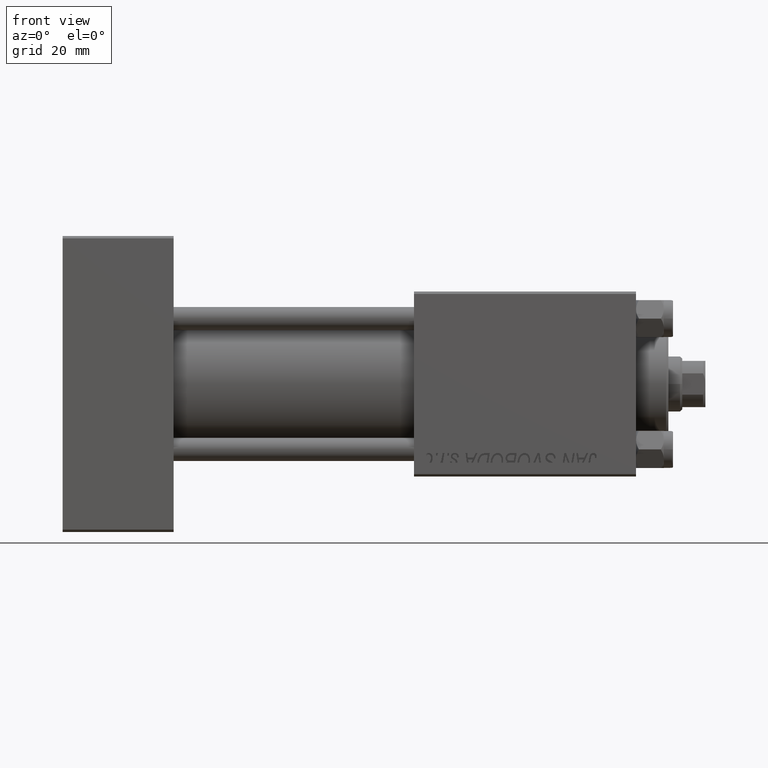
[diagram: clean part render]
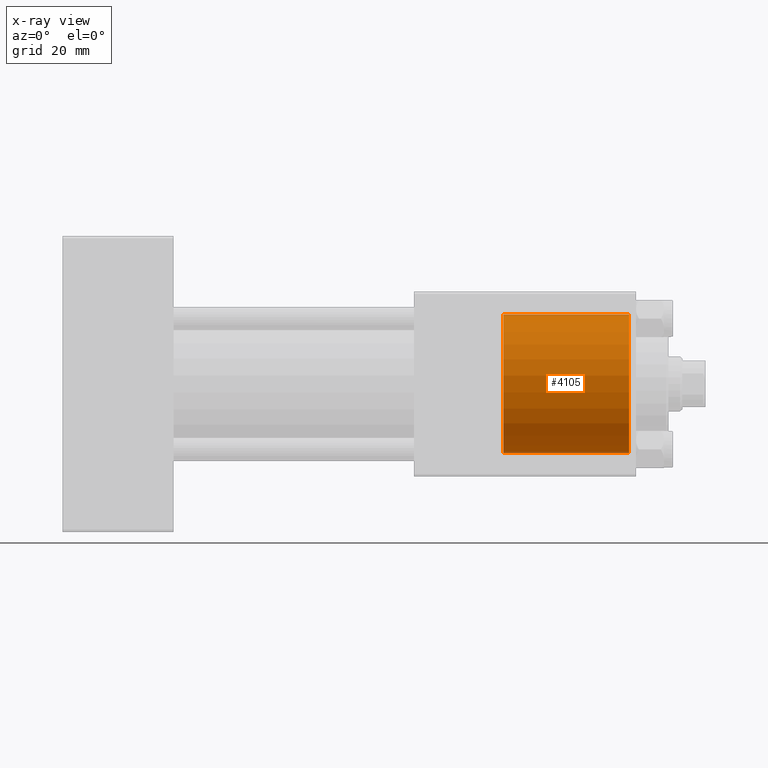
[diagram: x-ray — body ghosted, one internal face saturated and labeled with its STEP entity id]
A machine part, front view, then the same camera in x-ray: the body is ghosted and one INTERNAL B-rep face — a face not visible from any outside direction — is saturated and labeled: STEP entity #4105.
In plain terms, the highlighted cylindrical surface (partial cylindrical patch) has radius 15 mm, axis along (1, 0, 0).
Its self-contained STEP definition (entity closure, byte-faithful):
#2463 = LINE ( 'NONE', #10281, #13697 ) ;
#4042 = CARTESIAN_POINT ( 'NONE',  ( 95.29999999999999716, 0.000000000000000000, 0.000000000000000000 ) ) ;
#4097 = EDGE_LOOP ( 'NONE', ( #21529, #42740, #40988, #46063 ) ) ;
#4105 = ADVANCED_FACE ( 'NONE', ( #19054 ), #16027, .F. ) ;
#5315 = EDGE_CURVE ( 'NONE', #13286, #43643, #41207, .T. ) ;
#7498 = VERTEX_POINT ( 'NONE', #7843 ) ;
#7843 = CARTESIAN_POINT ( 'NONE',  ( 122.5000000000000000, 1.836970198721029589E-15, 15.00000000000000000 ) ) ;
#10281 = CARTESIAN_POINT ( 'NONE',  ( 95.29999999999999716, 0.000000000000000000, -15.00000000000000000 ) ) ;
#10867 = DIRECTION ( 'NONE',  ( 1.000000000000000000, 0.000000000000000000, 0.000000000000000000 ) ) ;
#11485 = DIRECTION ( 'NONE',  ( 0.000000000000000000, 0.000000000000000000, -1.000000000000000000 ) ) ;
#11680 = DIRECTION ( 'NONE',  ( 1.000000000000000000, 0.000000000000000000, 0.000000000000000000 ) ) ;
#11734 = CARTESIAN_POINT ( 'NONE',  ( 95.29999999999999716, 0.000000000000000000, 0.000000000000000000 ) ) ;
#12387 = CARTESIAN_POINT ( 'NONE',  ( 95.29999999999999716, 1.836970198721029589E-15, 15.00000000000000000 ) ) ;
#13286 = VERTEX_POINT ( 'NONE', #16735 ) ;
#13697 = VECTOR ( 'NONE', #17873, 1000.000000000000000 ) ;
#13739 = CIRCLE ( 'NONE', #41947, 15.00000000000000000 ) ;
#13962 = EDGE_CURVE ( 'NONE', #7498, #22268, #13739, .T. ) ;
#16027 = CYLINDRICAL_SURFACE ( 'NONE', #18631, 15.00000000000000000 ) ;
#16735 = CARTESIAN_POINT ( 'NONE',  ( 95.29999999999999716, 1.836970198721029589E-15, 15.00000000000000000 ) ) ;
#17873 = DIRECTION ( 'NONE',  ( 1.000000000000000000, -0.000000000000000000, -0.000000000000000000 ) ) ;
#18435 = CARTESIAN_POINT ( 'NONE',  ( 95.29999999999999716, 0.000000000000000000, -15.00000000000000000 ) ) ;
#18631 = AXIS2_PLACEMENT_3D ( 'NONE', #11734, #42037, #11485 ) ;
#18998 = CARTESIAN_POINT ( 'NONE',  ( 122.5000000000000000, 0.000000000000000000, 0.000000000000000000 ) ) ;
#19054 = FACE_OUTER_BOUND ( 'NONE', #4097, .T. ) ;
#21529 = ORIENTED_EDGE ( 'NONE', *, *, #5315, .F. ) ;
#22268 = VERTEX_POINT ( 'NONE', #41607 ) ;
#22284 = DIRECTION ( 'NONE',  ( 0.000000000000000000, 0.000000000000000000, 1.000000000000000000 ) ) ;
#33584 = EDGE_CURVE ( 'NONE', #13286, #7498, #35631, .T. ) ;
#35631 = LINE ( 'NONE', #12387, #43275 ) ;
#40988 = ORIENTED_EDGE ( 'NONE', *, *, #13962, .T. ) ;
#41207 = CIRCLE ( 'NONE', #47665, 15.00000000000000000 ) ;
#41607 = CARTESIAN_POINT ( 'NONE',  ( 122.5000000000000000, 0.000000000000000000, -15.00000000000000000 ) ) ;
#41947 = AXIS2_PLACEMENT_3D ( 'NONE', #18998, #11680, #22284 ) ;
#42037 = DIRECTION ( 'NONE',  ( 1.000000000000000000, -0.000000000000000000, -0.000000000000000000 ) ) ;
#42196 = DIRECTION ( 'NONE',  ( 1.000000000000000000, -0.000000000000000000, -0.000000000000000000 ) ) ;
#42740 = ORIENTED_EDGE ( 'NONE', *, *, #33584, .T. ) ;
#43275 = VECTOR ( 'NONE', #42196, 1000.000000000000000 ) ;
#43643 = VERTEX_POINT ( 'NONE', #18435 ) ;
#46063 = ORIENTED_EDGE ( 'NONE', *, *, #47117, .F. ) ;
#46454 = DIRECTION ( 'NONE',  ( 0.000000000000000000, 0.000000000000000000, -1.000000000000000000 ) ) ;
#47117 = EDGE_CURVE ( 'NONE', #43643, #22268, #2463, .T. ) ;
#47665 = AXIS2_PLACEMENT_3D ( 'NONE', #4042, #10867, #46454 ) ;